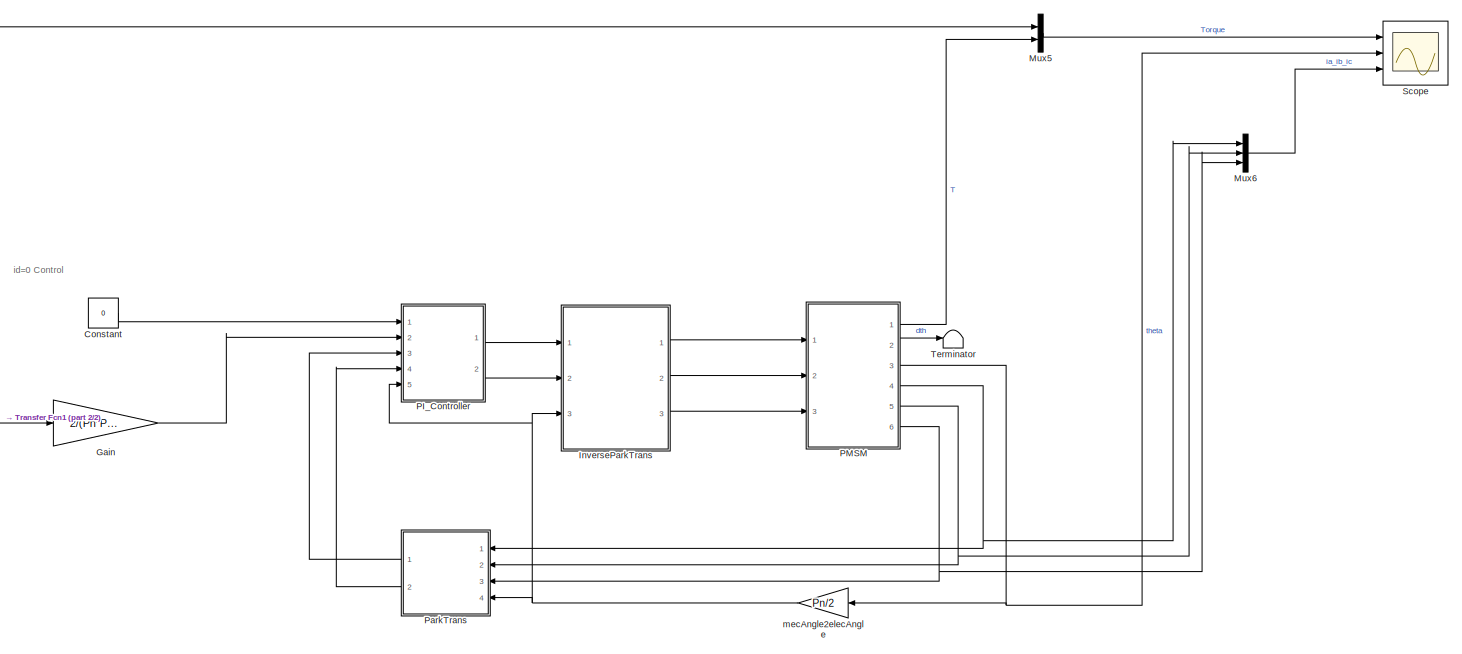
[diagram: root canvas - part 1/2, most of the canvas]
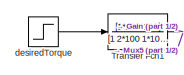
[diagram: root canvas - part 2/2, middle left region]
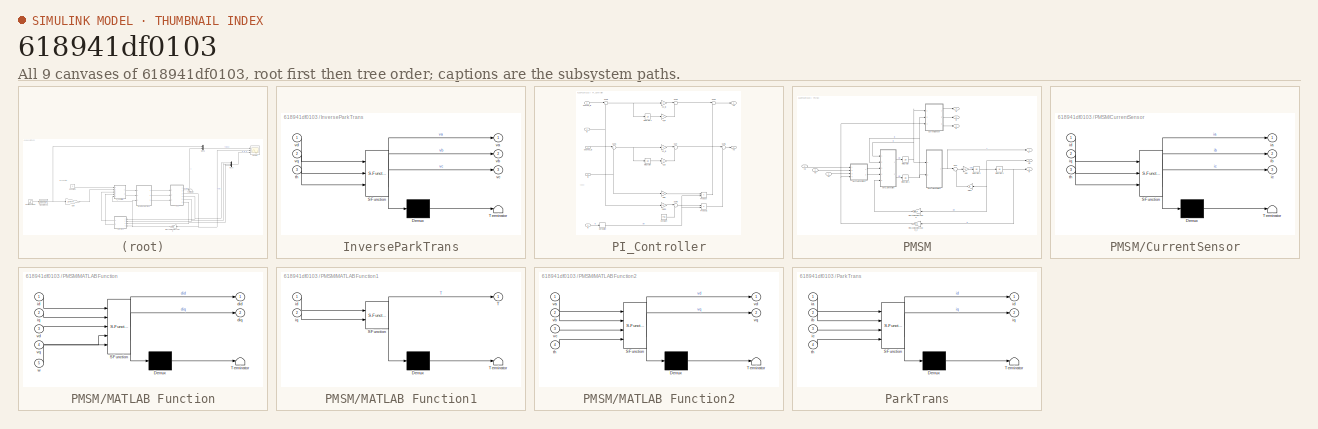
[diagram: thumbnail index - all 9 canvases of the model, root first then tree order]
MODEL slx_618941df0103
KIND model
CONFIG AbsTol = auto
CONFIG FixedStep = auto
CONFIG MaxStep = auto
CONFIG MinStep = auto
CONFIG RelTol = 1e-3
CONFIG SampleTimeConstraint = Unconstrained
CONFIG Solver = ode45
CONFIG SolverMode = Auto
CONFIG SolverName = ode45
CONFIG StartTime = 0.0
CONFIG StopTime = 5
BLOCK [Constant] Constant
  Value = 0
BLOCK [Gain] Gain
  Gain = 2/(Pn*Phia)
  OutDataTypeStr = Inherit: Inherit via internal rule
  ParamDataTypeStr = Inherit: Inherit via internal rule
  SaturateOnIntegerOverflow = off
BLOCK [SubSystem] InverseParkTrans
  ErrorFcn = Stateflow.Translate.translate
  PermitHierarchicalResolution = ExplicitOnly
  Ports = [3, 3]
  RequestExecContextInheritance = off
  SFBlockType = MATLAB Function
  SystemSampleTime = 0.001
  TreatAsAtomicUnit = on
BLOCK [Demux] InverseParkTrans/ Demux 
  Outputs = 1
  Ports = [1, 1]
BLOCK [S-Function] InverseParkTrans/ SFunction 
  EnableBusSupport = on
  FunctionName = sf_sfun
  PortCounts = [3 4]
  Ports = [3, 4]
  Tag = Stateflow S-Function PMSM 4
BLOCK [Terminator] InverseParkTrans/ Terminator 
BLOCK [Inport] InverseParkTrans/th
  IconDisplay = Port number
  Port = 3
BLOCK [Outport] InverseParkTrans/va
  IconDisplay = Port number
BLOCK [Outport] InverseParkTrans/vb
  IconDisplay = Port number
  Port = 2
BLOCK [Outport] InverseParkTrans/vc
  IconDisplay = Port number
  Port = 3
BLOCK [Inport] InverseParkTrans/vd
  IconDisplay = Port number
BLOCK [Inport] InverseParkTrans/vq
  IconDisplay = Port number
  Port = 2
BLOCK [Mux] Mux5
  DisplayOption = bar
  Inputs = 2
  Ports = [2, 1]
BLOCK [Mux] Mux6
  DisplayOption = bar
  Inputs = 3
  Ports = [3, 1]
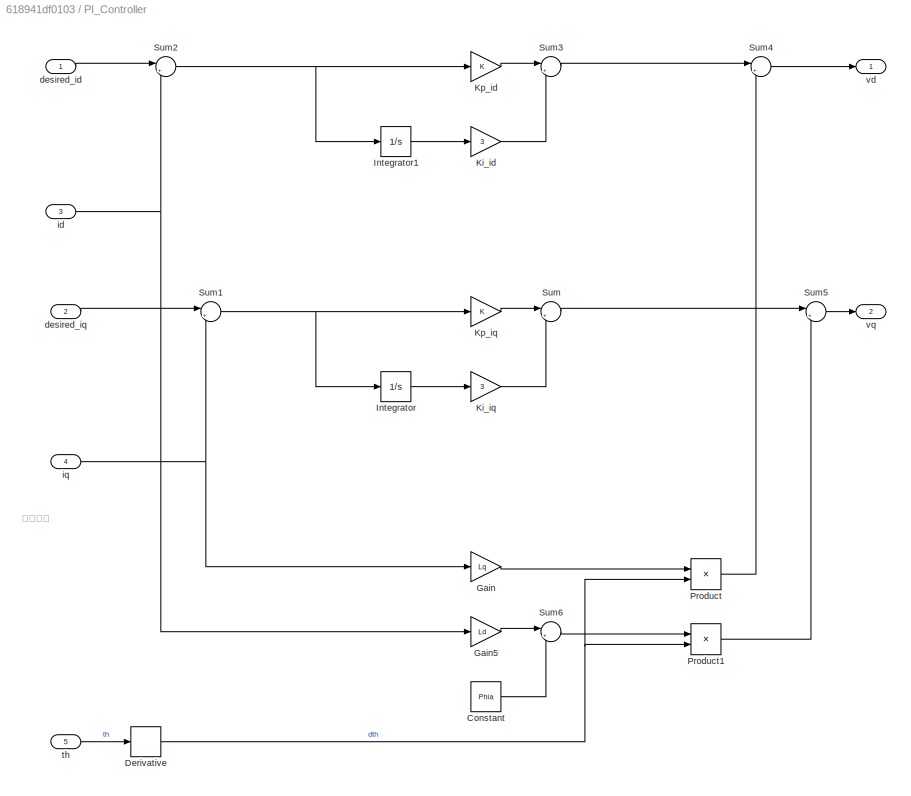
BLOCK [SubSystem] PI_Controller
  Ports = [5, 2]
  RequestExecContextInheritance = off
  SystemSampleTime = 0.001
BLOCK [Constant] PI_Controller/Constant
  Value = Phia
BLOCK [Derivative] PI_Controller/Derivative
BLOCK [Gain] PI_Controller/Gain
  Gain = Lq
  OutDataTypeStr = Inherit: Inherit via internal rule
  ParamDataTypeStr = Inherit: Inherit via internal rule
  SaturateOnIntegerOverflow = off
BLOCK [Gain] PI_Controller/Gain5
  Gain = Ld
  OutDataTypeStr = Inherit: Inherit via internal rule
  ParamDataTypeStr = Inherit: Inherit via internal rule
  SaturateOnIntegerOverflow = off
BLOCK [Integrator] PI_Controller/Integrator
  Ports = [1, 1]
BLOCK [Integrator] PI_Controller/Integrator1
  Ports = [1, 1]
BLOCK [Gain] PI_Controller/Ki_id
  Gain = 3
  OutDataTypeStr = Inherit: Inherit via internal rule
  ParamDataTypeStr = Inherit: Inherit via internal rule
  SaturateOnIntegerOverflow = off
BLOCK [Gain] PI_Controller/Ki_iq
  Gain = 3
  OutDataTypeStr = Inherit: Inherit via internal rule
  ParamDataTypeStr = Inherit: Inherit via internal rule
  SaturateOnIntegerOverflow = off
BLOCK [Gain] PI_Controller/Kp_id
  OutDataTypeStr = Inherit: Inherit via internal rule
  ParamDataTypeStr = Inherit: Inherit via internal rule
  SaturateOnIntegerOverflow = off
BLOCK [Gain] PI_Controller/Kp_iq
  OutDataTypeStr = Inherit: Inherit via internal rule
  ParamDataTypeStr = Inherit: Inherit via internal rule
  SaturateOnIntegerOverflow = off
BLOCK [Product] PI_Controller/Product
  InputSameDT = off
  OutDataTypeStr = Inherit: Inherit via internal rule
  Ports = [2, 1]
  RndMeth = Floor
  SaturateOnIntegerOverflow = off
BLOCK [Product] PI_Controller/Product1
  InputSameDT = off
  OutDataTypeStr = Inherit: Inherit via internal rule
  Ports = [2, 1]
  RndMeth = Floor
  SaturateOnIntegerOverflow = off
BLOCK [Sum] PI_Controller/Sum
  IconShape = round
  InputSameDT = off
  Inputs = |++
  OutDataTypeStr = Inherit: Inherit via internal rule
  Ports = [2, 1]
  SaturateOnIntegerOverflow = off
BLOCK [Sum] PI_Controller/Sum1
  IconShape = round
  InputSameDT = off
  Inputs = |+-
  OutDataTypeStr = Inherit: Inherit via internal rule
  Ports = [2, 1]
  SaturateOnIntegerOverflow = off
BLOCK [Sum] PI_Controller/Sum2
  IconShape = round
  InputSameDT = off
  Inputs = |+-
  OutDataTypeStr = Inherit: Inherit via internal rule
  Ports = [2, 1]
  SaturateOnIntegerOverflow = off
BLOCK [Sum] PI_Controller/Sum3
  IconShape = round
  InputSameDT = off
  Inputs = |++
  OutDataTypeStr = Inherit: Inherit via internal rule
  Ports = [2, 1]
  SaturateOnIntegerOverflow = off
BLOCK [Sum] PI_Controller/Sum4
  IconShape = round
  InputSameDT = off
  Inputs = |+-
  OutDataTypeStr = Inherit: Inherit via internal rule
  Ports = [2, 1]
  SaturateOnIntegerOverflow = off
BLOCK [Sum] PI_Controller/Sum5
  IconShape = round
  InputSameDT = off
  Inputs = |++
  OutDataTypeStr = Inherit: Inherit via internal rule
  Ports = [2, 1]
  SaturateOnIntegerOverflow = off
BLOCK [Sum] PI_Controller/Sum6
  IconShape = round
  InputSameDT = off
  Inputs = |++
  OutDataTypeStr = Inherit: Inherit via internal rule
  Ports = [2, 1]
  SaturateOnIntegerOverflow = off
BLOCK [Inport] PI_Controller/desired_id
  IconDisplay = Port number
BLOCK [Inport] PI_Controller/desired_iq
  IconDisplay = Port number
  Port = 2
BLOCK [Inport] PI_Controller/id
  IconDisplay = Port number
  Port = 3
BLOCK [Inport] PI_Controller/iq
  IconDisplay = Port number
  Port = 4
BLOCK [Inport] PI_Controller/th
  IconDisplay = Port number
  Port = 5
BLOCK [Outport] PI_Controller/vd
  IconDisplay = Port number
BLOCK [Outport] PI_Controller/vq
  IconDisplay = Port number
  Port = 2
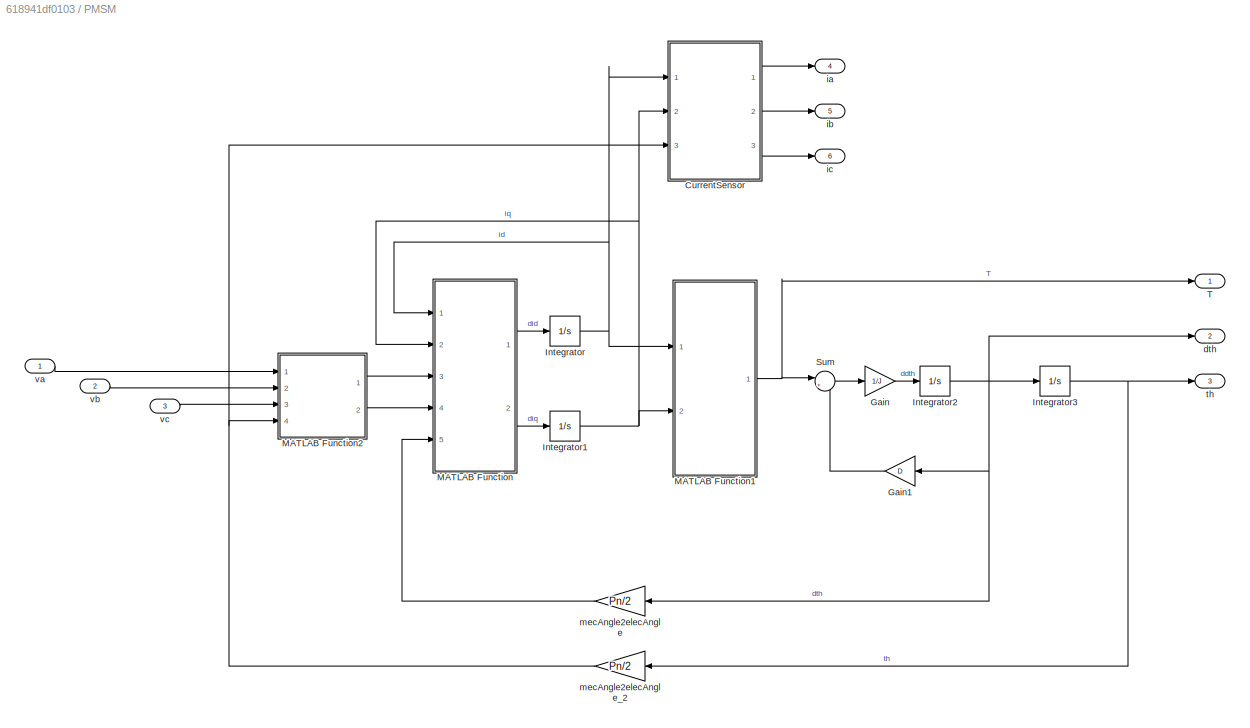
BLOCK [SubSystem] PMSM
  Ports = [3, 6]
  RequestExecContextInheritance = off
BLOCK [SubSystem] PMSM/CurrentSensor
  ErrorFcn = Stateflow.Translate.translate
  PermitHierarchicalResolution = ExplicitOnly
  Ports = [3, 3]
  RequestExecContextInheritance = off
  SFBlockType = MATLAB Function
  TreatAsAtomicUnit = on
BLOCK [Demux] PMSM/CurrentSensor/ Demux 
  Outputs = 1
  Ports = [1, 1]
BLOCK [S-Function] PMSM/CurrentSensor/ SFunction 
  EnableBusSupport = on
  FunctionName = sf_sfun
  PortCounts = [3 4]
  Ports = [3, 4]
  Tag = Stateflow S-Function PMSM 8
BLOCK [Terminator] PMSM/CurrentSensor/ Terminator 
BLOCK [Outport] PMSM/CurrentSensor/ia
  IconDisplay = Port number
BLOCK [Outport] PMSM/CurrentSensor/ib
  IconDisplay = Port number
  Port = 2
BLOCK [Outport] PMSM/CurrentSensor/ic
  IconDisplay = Port number
  Port = 3
BLOCK [Inport] PMSM/CurrentSensor/id
  IconDisplay = Port number
BLOCK [Inport] PMSM/CurrentSensor/iq
  IconDisplay = Port number
  Port = 2
BLOCK [Inport] PMSM/CurrentSensor/th
  IconDisplay = Port number
  Port = 3
BLOCK [Gain] PMSM/Gain
  Gain = 1/J
  OutDataTypeStr = Inherit: Inherit via internal rule
  ParamDataTypeStr = Inherit: Inherit via internal rule
  SaturateOnIntegerOverflow = off
BLOCK [Gain] PMSM/Gain1
  Gain = D
  OutDataTypeStr = Inherit: Inherit via internal rule
  ParamDataTypeStr = Inherit: Inherit via internal rule
  SaturateOnIntegerOverflow = off
BLOCK [Integrator] PMSM/Integrator
  Ports = [1, 1]
BLOCK [Integrator] PMSM/Integrator1
  Ports = [1, 1]
BLOCK [Integrator] PMSM/Integrator2
  Ports = [1, 1]
BLOCK [Integrator] PMSM/Integrator3
  Ports = [1, 1]
BLOCK [SubSystem] PMSM/MATLAB Function
  ErrorFcn = Stateflow.Translate.translate
  PermitHierarchicalResolution = ExplicitOnly
  Ports = [5, 2]
  RequestExecContextInheritance = off
  SFBlockType = MATLAB Function
  TreatAsAtomicUnit = on
BLOCK [Demux] PMSM/MATLAB Function/ Demux 
  Outputs = 1
  Ports = [1, 1]
BLOCK [S-Function] PMSM/MATLAB Function/ SFunction 
  EnableBusSupport = on
  FunctionName = sf_sfun
  Parameters = Ld,Lq,Phia,R
  PortCounts = [5 3]
  Ports = [5, 3]
  Tag = Stateflow S-Function PMSM 5
BLOCK [Terminator] PMSM/MATLAB Function/ Terminator 
BLOCK [Outport] PMSM/MATLAB Function/did
  IconDisplay = Port number
BLOCK [Outport] PMSM/MATLAB Function/diq
  IconDisplay = Port number
  Port = 2
BLOCK [Inport] PMSM/MATLAB Function/id
  IconDisplay = Port number
BLOCK [Inport] PMSM/MATLAB Function/iq
  IconDisplay = Port number
  Port = 2
BLOCK [Inport] PMSM/MATLAB Function/vd
  IconDisplay = Port number
  Port = 3
BLOCK [Inport] PMSM/MATLAB Function/vq
  IconDisplay = Port number
  Port = 4
BLOCK [Inport] PMSM/MATLAB Function/w
  IconDisplay = Port number
  Port = 5
BLOCK [SubSystem] PMSM/MATLAB Function1
  ErrorFcn = Stateflow.Translate.translate
  PermitHierarchicalResolution = ExplicitOnly
  Ports = [2, 1]
  RequestExecContextInheritance = off
  SFBlockType = MATLAB Function
  TreatAsAtomicUnit = on
BLOCK [Demux] PMSM/MATLAB Function1/ Demux 
  Outputs = 1
  Ports = [1, 1]
BLOCK [S-Function] PMSM/MATLAB Function1/ SFunction 
  EnableBusSupport = on
  FunctionName = sf_sfun
  Parameters = Ld,Lq,Phia,Pn
  PortCounts = [2 2]
  Ports = [2, 2]
  Tag = Stateflow S-Function PMSM 6
BLOCK [Terminator] PMSM/MATLAB Function1/ Terminator 
BLOCK [Outport] PMSM/MATLAB Function1/T
  IconDisplay = Port number
BLOCK [Inport] PMSM/MATLAB Function1/id
  IconDisplay = Port number
BLOCK [Inport] PMSM/MATLAB Function1/iq
  IconDisplay = Port number
  Port = 2
BLOCK [SubSystem] PMSM/MATLAB Function2
  ErrorFcn = Stateflow.Translate.translate
  PermitHierarchicalResolution = ExplicitOnly
  Ports = [4, 2]
  RequestExecContextInheritance = off
  SFBlockType = MATLAB Function
  TreatAsAtomicUnit = on
BLOCK [Demux] PMSM/MATLAB Function2/ Demux 
  Outputs = 1
  Ports = [1, 1]
BLOCK [S-Function] PMSM/MATLAB Function2/ SFunction 
  EnableBusSupport = on
  FunctionName = sf_sfun
  PortCounts = [4 3]
  Ports = [4, 3]
  Tag = Stateflow S-Function PMSM 7
BLOCK [Terminator] PMSM/MATLAB Function2/ Terminator 
BLOCK [Inport] PMSM/MATLAB Function2/th
  IconDisplay = Port number
  Port = 4
BLOCK [Inport] PMSM/MATLAB Function2/va
  IconDisplay = Port number
BLOCK [Inport] PMSM/MATLAB Function2/vb
  IconDisplay = Port number
  Port = 2
BLOCK [Inport] PMSM/MATLAB Function2/vc
  IconDisplay = Port number
  Port = 3
BLOCK [Outport] PMSM/MATLAB Function2/vd
  IconDisplay = Port number
BLOCK [Outport] PMSM/MATLAB Function2/vq
  IconDisplay = Port number
  Port = 2
BLOCK [Sum] PMSM/Sum
  IconShape = round
  InputSameDT = off
  Inputs = |+-
  OutDataTypeStr = Inherit: Inherit via internal rule
  Ports = [2, 1]
  SaturateOnIntegerOverflow = off
BLOCK [Outport] PMSM/T
  IconDisplay = Port number
BLOCK [Outport] PMSM/dth
  IconDisplay = Port number
  Port = 2
BLOCK [Outport] PMSM/ia
  IconDisplay = Port number
  Port = 4
BLOCK [Outport] PMSM/ib
  IconDisplay = Port number
  Port = 5
BLOCK [Outport] PMSM/ic
  IconDisplay = Port number
  Port = 6
BLOCK [Gain] PMSM/mecAngle2elecAngle
  Gain = Pn/2
  OutDataTypeStr = Inherit: Inherit via internal rule
  ParamDataTypeStr = Inherit: Inherit via internal rule
  SaturateOnIntegerOverflow = off
BLOCK [Gain] PMSM/mecAngle2elecAngle_2
  Gain = Pn/2
  OutDataTypeStr = Inherit: Inherit via internal rule
  ParamDataTypeStr = Inherit: Inherit via internal rule
  SaturateOnIntegerOverflow = off
BLOCK [Outport] PMSM/th
  IconDisplay = Port number
  Port = 3
BLOCK [Inport] PMSM/va
  IconDisplay = Port number
BLOCK [Inport] PMSM/vb
  IconDisplay = Port number
  Port = 2
BLOCK [Inport] PMSM/vc
  IconDisplay = Port number
  Port = 3
BLOCK [SubSystem] ParkTrans
  ErrorFcn = Stateflow.Translate.translate
  PermitHierarchicalResolution = ExplicitOnly
  Ports = [4, 2]
  RequestExecContextInheritance = off
  SFBlockType = MATLAB Function
  TreatAsAtomicUnit = on
BLOCK [Demux] ParkTrans/ Demux 
  Outputs = 1
  Ports = [1, 1]
BLOCK [S-Function] ParkTrans/ SFunction 
  EnableBusSupport = on
  FunctionName = sf_sfun
  PortCounts = [4 3]
  Ports = [4, 3]
  Tag = Stateflow S-Function PMSM 1
BLOCK [Terminator] ParkTrans/ Terminator 
BLOCK [Inport] ParkTrans/ia
  IconDisplay = Port number
BLOCK [Inport] ParkTrans/ib
  IconDisplay = Port number
  Port = 2
BLOCK [Inport] ParkTrans/ic
  IconDisplay = Port number
  Port = 3
BLOCK [Outport] ParkTrans/id
  IconDisplay = Port number
BLOCK [Outport] ParkTrans/iq
  IconDisplay = Port number
  Port = 2
BLOCK [Inport] ParkTrans/th
  IconDisplay = Port number
  Port = 4
BLOCK [Scope] Scope
  Floating = off
  LimitDataPoints = off
  NumInputPorts = 3
  Ports = [3]
  TimeRange = 5
  YMax = 5~15~80
  YMin = 0~0~-80
  ZoomMode = xonly
BLOCK [Terminator] Terminator
BLOCK [TransferFcn] Transfer Fcn1
  Denominator = [1 2*100 1*100*100]
  Numerator = [1*100*100]
BLOCK [Step] desiredTorque
  After = 5
  SampleTime = 0
BLOCK [Gain] mecAngle2elecAngle
  Gain = Pn/2
  OutDataTypeStr = Inherit: Inherit via internal rule
  ParamDataTypeStr = Inherit: Inherit via internal rule
  SaturateOnIntegerOverflow = off
ANNOTATION (root): id=0 Control
ANNOTATION PI_Controller: 非干渉化
LINE Constant:1 -> PI_Controller:1
LINE Gain:1 -> PI_Controller:2
LINE InverseParkTrans:1 -> PMSM:1
LINE InverseParkTrans:2 -> PMSM:2
LINE InverseParkTrans:3 -> PMSM:3
LINE Mux5:1 -> Scope:1
LINE Mux6:1 -> Scope:3
LINE PI_Controller/Constant:1 -> PI_Controller/Sum6:2
NET PI_Controller/Derivative:1 -> PI_Controller/Product1:2, PI_Controller/Product:2
LINE PI_Controller/Gain5:1 -> PI_Controller/Sum6:1
LINE PI_Controller/Gain:1 -> PI_Controller/Product:1
LINE PI_Controller/Integrator1:1 -> PI_Controller/Ki_id:1
LINE PI_Controller/Integrator:1 -> PI_Controller/Ki_iq:1
LINE PI_Controller/Ki_id:1 -> PI_Controller/Sum3:2
LINE PI_Controller/Ki_iq:1 -> PI_Controller/Sum:2
LINE PI_Controller/Kp_id:1 -> PI_Controller/Sum3:1
LINE PI_Controller/Kp_iq:1 -> PI_Controller/Sum:1
LINE PI_Controller/Product1:1 -> PI_Controller/Sum5:2
LINE PI_Controller/Product:1 -> PI_Controller/Sum4:2
NET PI_Controller/Sum1:1 -> PI_Controller/Integrator:1, PI_Controller/Kp_iq:1
NET PI_Controller/Sum2:1 -> PI_Controller/Integrator1:1, PI_Controller/Kp_id:1
LINE PI_Controller/Sum3:1 -> PI_Controller/Sum4:1
LINE PI_Controller/Sum4:1 -> PI_Controller/vd:1
LINE PI_Controller/Sum5:1 -> PI_Controller/vq:1
LINE PI_Controller/Sum6:1 -> PI_Controller/Product1:1
LINE PI_Controller/Sum:1 -> PI_Controller/Sum5:1
LINE PI_Controller/desired_id:1 -> PI_Controller/Sum2:1
LINE PI_Controller/desired_iq:1 -> PI_Controller/Sum1:1
NET PI_Controller/id:1 -> PI_Controller/Gain5:1, PI_Controller/Sum2:2
NET PI_Controller/iq:1 -> PI_Controller/Gain:1, PI_Controller/Sum1:2
LINE PI_Controller/th:1 -> PI_Controller/Derivative:1
LINE PI_Controller:1 -> InverseParkTrans:1
LINE PI_Controller:2 -> InverseParkTrans:2
LINE PMSM/CurrentSensor:1 -> PMSM/ia:1
LINE PMSM/CurrentSensor:2 -> PMSM/ib:1
LINE PMSM/CurrentSensor:3 -> PMSM/ic:1
LINE PMSM/Gain1:1 -> PMSM/Sum:2
LINE PMSM/Gain:1 -> PMSM/Integrator2:1
NET PMSM/Integrator1:1 -> PMSM/CurrentSensor:2, PMSM/MATLAB Function1:2, PMSM/MATLAB Function:2
NET PMSM/Integrator2:1 -> PMSM/Gain1:1, PMSM/Integrator3:1, PMSM/dth:1, PMSM/mecAngle2elecAngle:1
NET PMSM/Integrator3:1 -> PMSM/mecAngle2elecAngle_2:1, PMSM/th:1
NET PMSM/Integrator:1 -> PMSM/CurrentSensor:1, PMSM/MATLAB Function1:1, PMSM/MATLAB Function:1
NET PMSM/MATLAB Function1:1 -> PMSM/Sum:1, PMSM/T:1
LINE PMSM/MATLAB Function2:1 -> PMSM/MATLAB Function:3
LINE PMSM/MATLAB Function2:2 -> PMSM/MATLAB Function:4
LINE PMSM/MATLAB Function:1 -> PMSM/Integrator:1
LINE PMSM/MATLAB Function:2 -> PMSM/Integrator1:1
LINE PMSM/Sum:1 -> PMSM/Gain:1
LINE PMSM/mecAngle2elecAngle:1 -> PMSM/MATLAB Function:5
NET PMSM/mecAngle2elecAngle_2:1 -> PMSM/CurrentSensor:3, PMSM/MATLAB Function2:4
LINE PMSM/va:1 -> PMSM/MATLAB Function2:1
LINE PMSM/vb:1 -> PMSM/MATLAB Function2:2
LINE PMSM/vc:1 -> PMSM/MATLAB Function2:3
LINE PMSM:1 -> Mux5:2
LINE PMSM:2 -> Terminator:1
NET PMSM:3 -> Scope:2, mecAngle2elecAngle:1
NET PMSM:4 -> Mux6:1, ParkTrans:1
NET PMSM:5 -> Mux6:2, ParkTrans:2
NET PMSM:6 -> Mux6:3, ParkTrans:3
LINE ParkTrans:1 -> PI_Controller:3
LINE ParkTrans:2 -> PI_Controller:4
NET Transfer Fcn1:1 -> Gain:1, Mux5:1
LINE desiredTorque:1 -> Transfer Fcn1:1
NET mecAngle2elecAngle:1 -> InverseParkTrans:3, PI_Controller:5, ParkTrans:4
note: NET lines group one-source signal fan-out (src -> all destinations, sorted); 1:1 wires keep LINE
CHART ParkTrans states=1 transitions=1
  STATE_LABEL 'eML_blk_kernel()'
  STATE_LABEL 'SCRIPT:\nfunction [ id, iq ] = fcn( ia, ib, ic, th ) \n    %#codegen\n    buff = [\n         cos( th ),  cos( th - ( ( 2 * pi ) / 3 ) ),  cos( th + ( ( 2 * pi ) / 3 ) );\n        -sin( th ), -sin( th - ( ( 2 * pi ) / 3 ) ), -sin( th + ( ( 2 * pi ) / 3 ) );\n        ( 1 / sqrt( 2 ) ), ( 1 / sqrt( 2 ) ), ( 1 / sqrt( 2 ) );\n    ];\n\n    idq = sqrt( 2 / 3 ) * buff * [ ia;ib;ic; ];\n    id = idq(1);\n    iq = i...<+10ch>'
CHART InverseParkTrans states=1 transitions=1
  STATE_LABEL 'eML_blk_kernel()'
  STATE_LABEL 'SCRIPT:\nfunction [ va, vb, vc ] = fcn( vd, vq, th ) \n    %#codegen\n    buff = [\n        cos( th ), -sin( th ), ( 1 / sqrt( 2 ) );\n        cos( th - ( ( 2 * pi ) / 3 ) ), -sin( th - ( ( 2 * pi ) / 3 ) ), ( 1 / sqrt( 2 ) );\n        cos( th + ( ( 2 * pi ) / 3 ) ), -sin( th + ( ( 2 * pi ) / 3 ) ), ( 1 / sqrt( 2 ) );\n    ];\n\n    vabc = sqrt( 2 / 3 ) * buff * [ vd;vq;0; ];\n    va = vabc(1);\n    vb = vab...<+27ch>'
CHART PMSM/MATLAB Function states=1 transitions=1
  STATE_LABEL 'eML_blk_kernel()'
  STATE_LABEL 'SCRIPT:\nfunction [ did, diq ] = fcn( id, iq, vd ,vq, w, R, Ld, Lq, Phia ) \n    %#codegen\n    \n    idq = [ id;iq; ];\n    vdq = [ vd;vq; ];\n    \n    A = [ \n        -( R / Ld ), ( w * ( Lq / Ld ) );\n        -( w * ( Ld / Lq ) ), -( R / Lq );\n    ];\n    \n    B = [\n        ( 1 / Ld ), 0;\n        0, ( 1 / Lq );\n    ];\n\n    U = [\n        0;\n        -( w * ( Phia / Lq ) );\n    ];\n\n    didq = A * idq + B *...<+56ch>'
CHART PMSM/MATLAB Function1 states=1 transitions=1
  STATE_LABEL 'eML_blk_kernel()'
  STATE_LABEL 'SCRIPT:\nfunction T = fcn( id, iq, Ld, Lq, Phia, Pn ) \n    %#codegen\n    \n    T = ( Pn / 2 ) * ( Phia * iq + ( Ld - Lq ) * id * iq );\n\nend'
CHART PMSM/MATLAB Function2 states=1 transitions=1
  STATE_LABEL 'eML_blk_kernel()'
  STATE_LABEL 'SCRIPT:\nfunction [ vd, vq ] = fcn( va, vb, vc, th ) \n    %#codegen\n    buff = [\n         cos( th ),  cos( th - ( ( 2 * pi ) / 3 ) ),  cos( th + ( ( 2 * pi ) / 3 ) );\n        -sin( th ), -sin( th - ( ( 2 * pi ) / 3 ) ), -sin( th + ( ( 2 * pi ) / 3 ) );\n        ( 1 / sqrt( 2 ) ), ( 1 / sqrt( 2 ) ), ( 1 / sqrt( 2 ) );\n    ];\n\n    vdq = sqrt( 2 / 3 ) * buff * [ va;vb;vc; ];\n    vd = vdq(1);\n    vq = v...<+10ch>'
CHART PMSM/CurrentSensor states=1 transitions=1
  STATE_LABEL 'eML_blk_kernel()'
  STATE_LABEL 'SCRIPT:\nfunction [ ia, ib, ic ] = fcn( id, iq, th ) \n    %#codegen\n    buff = [\n        cos( th ), -sin( th ), ( 1 / sqrt( 2 ) );\n        cos( th - ( ( 2 * pi ) / 3 ) ), -sin( th - ( ( 2 * pi ) / 3 ) ), ( 1 / sqrt( 2 ) );\n        cos( th + ( ( 2 * pi ) / 3 ) ), -sin( th + ( ( 2 * pi ) / 3 ) ), ( 1 / sqrt( 2 ) );\n    ];\n\n    iabc = sqrt( 2 / 3 ) * buff * [ id;iq;0; ];\n    ia = iabc(1);\n    ib = iab...<+27ch>'
